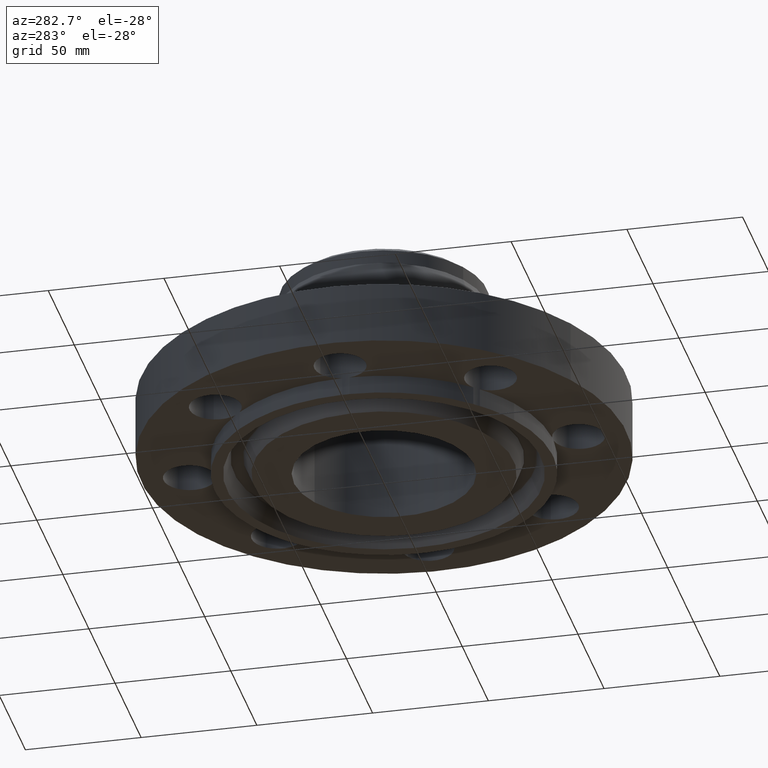
[diagram: clean part render]
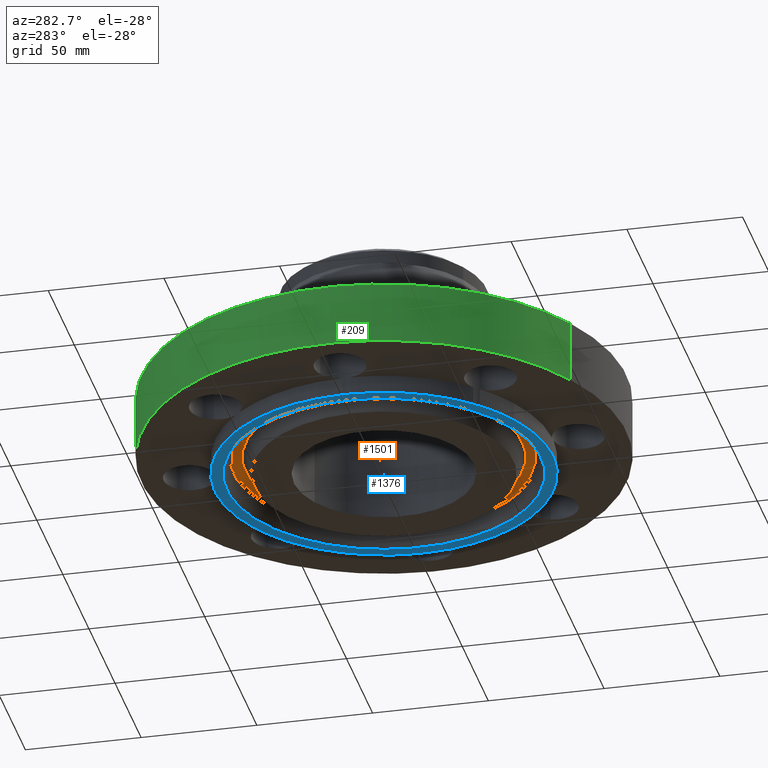
[diagram: same view with three faces highlighted in distinct colors, each labeled with its STEP entity id]
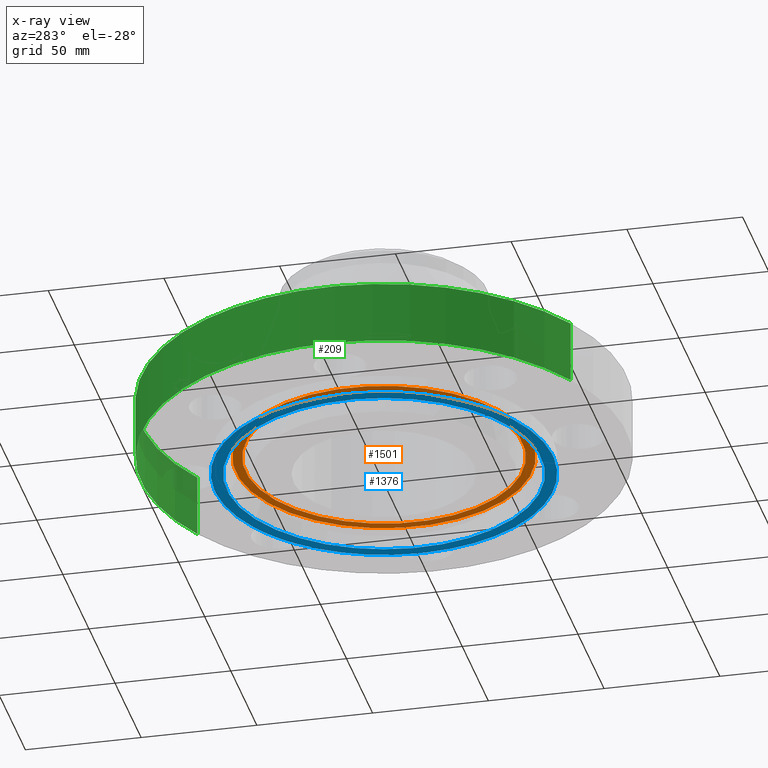
[diagram: x-ray of the same camera — body ghosted, the three highlighted faces saturated]
A machine part, auxiliary view with three faces highlighted in distinct colors.
The next image is the same camera in x-ray (body ghosted, the three faces saturated) — at least one of them is partly hidden behind the body in this view.
Their STEP definitions:

[orange] entity #1501 — the highlighted planar face has unit normal (0, 0, -1).
#793=AXIS2_PLACEMENT_3D('Plane Axis2P3D',#790,#791,#792) ;
#1423=AXIS2_PLACEMENT_3D('Circle Axis2P3D',#1421,#1422,$) ;
#1469=AXIS2_PLACEMENT_3D('Circle Axis2P3D',#1467,#1468,$) ;
#1485=AXIS2_PLACEMENT_3D('Circle Axis2P3D',#1483,#1484,$) ;
#1494=AXIS2_PLACEMENT_3D('Circle Axis2P3D',#1492,#1493,$) ;
#790=CARTESIAN_POINT('Axis2P3D Location',(0.,2.87500000001,0.)) ;
#1418=CARTESIAN_POINT('Vertex',(-1.20749119597,2.2102978083,-1.09273919747E-016)) ;
#1421=CARTESIAN_POINT('Axis2P3D Location',(0.,0.,-1.09273919747E-016)) ;
#1425=CARTESIAN_POINT('Vertex',(1.20749119597,-2.2102978083,-1.09273919747E-016)) ;
#1467=CARTESIAN_POINT('Axis2P3D Location',(0.,0.,-1.09273919747E-016)) ;
#1483=CARTESIAN_POINT('Axis2P3D Location',(0.,0.,0.)) ;
#1487=CARTESIAN_POINT('Vertex',(1.12970830473,-2.06791718093,1.04902962957E-016)) ;
#1489=CARTESIAN_POINT('Vertex',(-1.12970830473,2.06791718093,1.04902962957E-016)) ;
#1492=CARTESIAN_POINT('Axis2P3D Location',(0.,0.,0.)) ;
#791=DIRECTION('Axis2P3D Direction',(0.,0.,-0.0393700787402)) ;
#792=DIRECTION('Axis2P3D XDirection',(0.0393700787402,0.,0.)) ;
#1422=DIRECTION('Axis2P3D Direction',(0.,0.,0.0393700787402)) ;
#1468=DIRECTION('Axis2P3D Direction',(0.,0.,0.0393700787402)) ;
#1484=DIRECTION('Axis2P3D Direction',(0.,0.,-0.0393700787402)) ;
#1493=DIRECTION('Axis2P3D Direction',(0.,0.,-0.0393700787402)) ;
#1480=ORIENTED_EDGE('',*,*,#1427,.F.) ;
#1481=ORIENTED_EDGE('',*,*,#1471,.F.) ;
#1498=ORIENTED_EDGE('',*,*,#1491,.T.) ;
#1499=ORIENTED_EDGE('',*,*,#1496,.T.) ;
#1500=FACE_BOUND('',#1497,.T.) ;
#1501=ADVANCED_FACE('PartBody',(#1482,#1500),#794,.T.) ;
#1424=CIRCLE('generated circle',#1423,2.51862093014) ;
#1470=CIRCLE('generated circle',#1469,2.51862093014) ;
#1486=CIRCLE('generated circle',#1485,2.35637906988) ;
#1495=CIRCLE('generated circle',#1494,2.35637906988) ;
#1427=EDGE_CURVE('',#1419,#1426,#1424,.T.) ;
#1471=EDGE_CURVE('',#1426,#1419,#1470,.T.) ;
#1491=EDGE_CURVE('',#1488,#1490,#1486,.F.) ;
#1496=EDGE_CURVE('',#1490,#1488,#1495,.F.) ;
#1479=EDGE_LOOP('',(#1480,#1481)) ;
#1497=EDGE_LOOP('',(#1498,#1499)) ;
#1482=FACE_OUTER_BOUND('',#1479,.T.) ;
#794=PLANE('',#793) ;
#1419=VERTEX_POINT('',#1418) ;
#1426=VERTEX_POINT('',#1425) ;
#1488=VERTEX_POINT('',#1487) ;
#1490=VERTEX_POINT('',#1489) ;

[blue] entity #1376 — the highlighted planar face has unit normal (0, 0, -1).
#99=AXIS2_PLACEMENT_3D('Circle Axis2P3D',#97,#98,$) ;
#160=AXIS2_PLACEMENT_3D('Circle Axis2P3D',#158,#159,$) ;
#504=AXIS2_PLACEMENT_3D('Circle Axis2P3D',#502,#503,$) ;
#546=AXIS2_PLACEMENT_3D('Circle Axis2P3D',#544,#545,$) ;
#574=AXIS2_PLACEMENT_3D('Circle Axis2P3D',#572,#573,$) ;
#600=AXIS2_PLACEMENT_3D('Circle Axis2P3D',#598,#599,$) ;
#635=AXIS2_PLACEMENT_3D('Circle Axis2P3D',#633,#634,$) ;
#677=AXIS2_PLACEMENT_3D('Circle Axis2P3D',#675,#676,$) ;
#705=AXIS2_PLACEMENT_3D('Circle Axis2P3D',#703,#704,$) ;
#747=AXIS2_PLACEMENT_3D('Circle Axis2P3D',#745,#746,$) ;
#766=AXIS2_PLACEMENT_3D('Circle Axis2P3D',#764,#765,$) ;
#1002=AXIS2_PLACEMENT_3D('Circle Axis2P3D',#1000,#1001,$) ;
#1054=AXIS2_PLACEMENT_3D('Circle Axis2P3D',#1052,#1053,$) ;
#1106=AXIS2_PLACEMENT_3D('Circle Axis2P3D',#1104,#1105,$) ;
#1158=AXIS2_PLACEMENT_3D('Circle Axis2P3D',#1156,#1157,$) ;
#1210=AXIS2_PLACEMENT_3D('Circle Axis2P3D',#1208,#1209,$) ;
#1262=AXIS2_PLACEMENT_3D('Circle Axis2P3D',#1260,#1261,$) ;
#1314=AXIS2_PLACEMENT_3D('Circle Axis2P3D',#1312,#1313,$) ;
#1336=AXIS2_PLACEMENT_3D('Plane Axis2P3D',#1333,#1334,#1335) ;
#1360=AXIS2_PLACEMENT_3D('Circle Axis2P3D',#1358,#1359,$) ;
#1369=AXIS2_PLACEMENT_3D('Circle Axis2P3D',#1367,#1368,$) ;
#94=CARTESIAN_POINT('Vertex',(0.0616409036851,2.87433912388,-0.313000000001)) ;
#97=CARTESIAN_POINT('Axis2P3D Location',(0.,3.31000000001,-0.313000000001)) ;
#101=CARTESIAN_POINT('Vertex',(-0.0616409036851,2.87433912388,-0.313000000001)) ;
#155=CARTESIAN_POINT('Vertex',(1.37834842349,2.52304986544,-0.313000000001)) ;
#158=CARTESIAN_POINT('Axis2P3D Location',(0.,0.,-0.313000000001)) ;
#502=CARTESIAN_POINT('Axis2P3D Location',(0.,0.,-0.313000000001)) ;
#506=CARTESIAN_POINT('Vertex',(-2.87433912388,0.0616409036851,-0.313000000001)) ;
#508=CARTESIAN_POINT('Vertex',(-2.07605138692,1.98887798493,-0.313000000001)) ;
#544=CARTESIAN_POINT('Axis2P3D Location',(0.,0.,-0.313000000001)) ;
#548=CARTESIAN_POINT('Vertex',(-1.98887798493,2.07605138692,-0.313000000001)) ;
#569=CARTESIAN_POINT('Vertex',(-2.87433912388,-0.0616409036851,-0.313000000001)) ;
#572=CARTESIAN_POINT('Axis2P3D Location',(0.,0.,-0.313000000001)) ;
#576=CARTESIAN_POINT('Vertex',(-2.07605138692,-1.98887798493,-0.313000000001)) ;
#598=CARTESIAN_POINT('Axis2P3D Location',(0.,0.,-0.313000000001)) ;
#602=CARTESIAN_POINT('Vertex',(-1.37834842349,-2.52304986544,-0.313000000001)) ;
#604=CARTESIAN_POINT('Vertex',(-1.98887798493,-2.07605138692,-0.313000000001)) ;
#633=CARTESIAN_POINT('Axis2P3D Location',(0.,0.,-0.313000000001)) ;
#637=CARTESIAN_POINT('Vertex',(1.98887798493,-2.07605138692,-0.313000000001)) ;
#639=CARTESIAN_POINT('Vertex',(0.0616409036851,-2.87433912388,-0.313000000001)) ;
#675=CARTESIAN_POINT('Axis2P3D Location',(0.,0.,-0.313000000001)) ;
#679=CARTESIAN_POINT('Vertex',(-0.0616409036851,-2.87433912388,-0.313000000001)) ;
#700=CARTESIAN_POINT('Vertex',(2.07605138692,-1.98887798493,-0.313000000001)) ;
#703=CARTESIAN_POINT('Axis2P3D Location',(0.,0.,-0.313000000001)) ;
#707=CARTESIAN_POINT('Vertex',(2.87433912388,-0.0616409036851,-0.313000000001)) ;
#742=CARTESIAN_POINT('Vertex',(2.87433912388,0.0616409036851,-0.313000000001)) ;
#745=CARTESIAN_POINT('Axis2P3D Location',(0.,0.,-0.313000000001)) ;
#749=CARTESIAN_POINT('Vertex',(2.07605138692,1.98887798493,-0.313000000001)) ;
#764=CARTESIAN_POINT('Axis2P3D Location',(0.,0.,-0.313000000001)) ;
#768=CARTESIAN_POINT('Vertex',(1.98887798493,2.07605138692,-0.313000000001)) ;
#1000=CARTESIAN_POINT('Axis2P3D Location',(-2.34052344574,-2.34052344574,-0.313000000001)) ;
#1052=CARTESIAN_POINT('Axis2P3D Location',(4.05358090519E-016,-3.31000000001,-0.313000000001)) ;
#1104=CARTESIAN_POINT('Axis2P3D Location',(-3.31000000001,-6.08037135779E-016,-0.313000000001)) ;
#1156=CARTESIAN_POINT('Axis2P3D Location',(2.34052344574,2.34052344574,-0.313000000001)) ;
#1208=CARTESIAN_POINT('Axis2P3D Location',(2.34052344574,-2.34052344574,-0.313000000001)) ;
#1260=CARTESIAN_POINT('Axis2P3D Location',(3.31000000001,2.0267904526E-016,-0.313000000001)) ;
#1312=CARTESIAN_POINT('Axis2P3D Location',(-2.34052344574,2.34052344574,-0.313000000001)) ;
#1333=CARTESIAN_POINT('Axis2P3D Location',(0.,1.53400000001,-0.313000000001)) ;
#1358=CARTESIAN_POINT('Axis2P3D Location',(-2.79741234551E-016,2.79741234551E-016,-0.313000000001)) ;
#1362=CARTESIAN_POINT('Vertex',(1.28102503916,-2.34490060538,-0.313000000001)) ;
#1364=CARTESIAN_POINT('Vertex',(-1.28102503916,2.34490060538,-0.313000000001)) ;
#1367=CARTESIAN_POINT('Axis2P3D Location',(0.,5.59482469102E-016,-0.313000000001)) ;
#98=DIRECTION('Axis2P3D Direction',(0.,-0.,-0.0393700787402)) ;
#159=DIRECTION('Axis2P3D Direction',(0.,0.,-0.0393700787402)) ;
#503=DIRECTION('Axis2P3D Direction',(0.,0.,-0.0393700787402)) ;
#545=DIRECTION('Axis2P3D Direction',(0.,0.,-0.0393700787402)) ;
#573=DIRECTION('Axis2P3D Direction',(0.,0.,-0.0393700787402)) ;
#599=DIRECTION('Axis2P3D Direction',(0.,0.,-0.0393700787402)) ;
#634=DIRECTION('Axis2P3D Direction',(0.,0.,-0.0393700787402)) ;
#676=DIRECTION('Axis2P3D Direction',(0.,0.,-0.0393700787402)) ;
#704=DIRECTION('Axis2P3D Direction',(0.,0.,-0.0393700787402)) ;
#746=DIRECTION('Axis2P3D Direction',(0.,0.,-0.0393700787402)) ;
#765=DIRECTION('Axis2P3D Direction',(0.,0.,-0.0393700787402)) ;
#1001=DIRECTION('Axis2P3D Direction',(0.,0.,-0.0393700787402)) ;
#1053=DIRECTION('Axis2P3D Direction',(-0.,0.,-0.0393700787402)) ;
#1105=DIRECTION('Axis2P3D Direction',(0.,0.,-0.0393700787402)) ;
#1157=DIRECTION('Axis2P3D Direction',(0.,-0.,-0.0393700787402)) ;
#1209=DIRECTION('Axis2P3D Direction',(-0.,0.,-0.0393700787402)) ;
#1261=DIRECTION('Axis2P3D Direction',(0.,-0.,-0.0393700787402)) ;
#1313=DIRECTION('Axis2P3D Direction',(0.,0.,-0.0393700787402)) ;
#1334=DIRECTION('Axis2P3D Direction',(0.,0.,-0.0393700787402)) ;
#1335=DIRECTION('Axis2P3D XDirection',(0.0393700787402,0.,0.)) ;
#1359=DIRECTION('Axis2P3D Direction',(0.,0.,-0.0393700787402)) ;
#1368=DIRECTION('Axis2P3D Direction',(0.,0.,-0.0393700787402)) ;
#1339=ORIENTED_EDGE('',*,*,#751,.T.) ;
#1340=ORIENTED_EDGE('',*,*,#1264,.F.) ;
#1341=ORIENTED_EDGE('',*,*,#709,.T.) ;
#1342=ORIENTED_EDGE('',*,*,#1212,.F.) ;
#1343=ORIENTED_EDGE('',*,*,#641,.T.) ;
#1344=ORIENTED_EDGE('',*,*,#1056,.F.) ;
#1345=ORIENTED_EDGE('',*,*,#681,.T.) ;
#1346=ORIENTED_EDGE('',*,*,#606,.T.) ;
#1347=ORIENTED_EDGE('',*,*,#1004,.F.) ;
#1348=ORIENTED_EDGE('',*,*,#578,.T.) ;
#1349=ORIENTED_EDGE('',*,*,#1108,.F.) ;
#1350=ORIENTED_EDGE('',*,*,#510,.T.) ;
#1351=ORIENTED_EDGE('',*,*,#1316,.F.) ;
#1352=ORIENTED_EDGE('',*,*,#550,.T.) ;
#1353=ORIENTED_EDGE('',*,*,#103,.F.) ;
#1354=ORIENTED_EDGE('',*,*,#162,.T.) ;
#1355=ORIENTED_EDGE('',*,*,#770,.T.) ;
#1356=ORIENTED_EDGE('',*,*,#1160,.F.) ;
#1373=ORIENTED_EDGE('',*,*,#1366,.F.) ;
#1374=ORIENTED_EDGE('',*,*,#1371,.F.) ;
#1375=FACE_BOUND('',#1372,.T.) ;
#1376=ADVANCED_FACE('PartBody',(#1357,#1375),#1337,.T.) ;
#100=CIRCLE('generated circle',#99,0.440000000002) ;
#161=CIRCLE('generated circle',#160,2.87500000001) ;
#505=CIRCLE('generated circle',#504,2.87500000001) ;
#547=CIRCLE('generated circle',#546,2.87500000001) ;
#575=CIRCLE('generated circle',#574,2.87500000001) ;
#601=CIRCLE('generated circle',#600,2.87500000001) ;
#636=CIRCLE('generated circle',#635,2.87500000001) ;
#678=CIRCLE('generated circle',#677,2.87500000001) ;
#706=CIRCLE('generated circle',#705,2.87500000001) ;
#748=CIRCLE('generated circle',#747,2.87500000001) ;
#767=CIRCLE('generated circle',#766,2.87500000001) ;
#1003=CIRCLE('generated circle',#1002,0.440000000002) ;
#1055=CIRCLE('generated circle',#1054,0.440000000002) ;
#1107=CIRCLE('generated circle',#1106,0.440000000002) ;
#1159=CIRCLE('generated circle',#1158,0.440000000002) ;
#1211=CIRCLE('generated circle',#1210,0.440000000002) ;
#1263=CIRCLE('generated circle',#1262,0.440000000002) ;
#1315=CIRCLE('generated circle',#1314,0.440000000002) ;
#1361=CIRCLE('generated circle',#1360,2.67200000001) ;
#1370=CIRCLE('generated circle',#1369,2.67200000001) ;
#103=EDGE_CURVE('',#95,#102,#100,.T.) ;
#162=EDGE_CURVE('',#95,#156,#161,.T.) ;
#510=EDGE_CURVE('',#507,#509,#505,.T.) ;
#550=EDGE_CURVE('',#549,#102,#547,.T.) ;
#578=EDGE_CURVE('',#577,#570,#575,.T.) ;
#606=EDGE_CURVE('',#603,#605,#601,.T.) ;
#641=EDGE_CURVE('',#638,#640,#636,.T.) ;
#681=EDGE_CURVE('',#680,#603,#678,.T.) ;
#709=EDGE_CURVE('',#708,#701,#706,.T.) ;
#751=EDGE_CURVE('',#750,#743,#748,.T.) ;
#770=EDGE_CURVE('',#156,#769,#767,.T.) ;
#1004=EDGE_CURVE('',#577,#605,#1003,.T.) ;
#1056=EDGE_CURVE('',#680,#640,#1055,.T.) ;
#1108=EDGE_CURVE('',#507,#570,#1107,.T.) ;
#1160=EDGE_CURVE('',#750,#769,#1159,.T.) ;
#1212=EDGE_CURVE('',#638,#701,#1211,.T.) ;
#1264=EDGE_CURVE('',#708,#743,#1263,.T.) ;
#1316=EDGE_CURVE('',#549,#509,#1315,.T.) ;
#1366=EDGE_CURVE('',#1363,#1365,#1361,.T.) ;
#1371=EDGE_CURVE('',#1365,#1363,#1370,.T.) ;
#1338=EDGE_LOOP('',(#1339,#1340,#1341,#1342,#1343,#1344,#1345,#1346,#1347,#1348,#1349,#1350,#1351,#1352,#1353,#1354,#1355,#1356)) ;
#1372=EDGE_LOOP('',(#1373,#1374)) ;
#1357=FACE_OUTER_BOUND('',#1338,.T.) ;
#1337=PLANE('',#1336) ;
#95=VERTEX_POINT('',#94) ;
#102=VERTEX_POINT('',#101) ;
#156=VERTEX_POINT('',#155) ;
#507=VERTEX_POINT('',#506) ;
#509=VERTEX_POINT('',#508) ;
#549=VERTEX_POINT('',#548) ;
#570=VERTEX_POINT('',#569) ;
#577=VERTEX_POINT('',#576) ;
#603=VERTEX_POINT('',#602) ;
#605=VERTEX_POINT('',#604) ;
#638=VERTEX_POINT('',#637) ;
#640=VERTEX_POINT('',#639) ;
#680=VERTEX_POINT('',#679) ;
#701=VERTEX_POINT('',#700) ;
#708=VERTEX_POINT('',#707) ;
#743=VERTEX_POINT('',#742) ;
#750=VERTEX_POINT('',#749) ;
#769=VERTEX_POINT('',#768) ;
#1363=VERTEX_POINT('',#1362) ;
#1365=VERTEX_POINT('',#1364) ;

[green] entity #209 — the highlighted cylindrical surface (partial cylindrical patch) has radius 104.775 mm, axis along (0, 0, -1).
#173=AXIS2_PLACEMENT_3D('Cylinder Axis2P3D',#170,#171,#172) ;
#177=AXIS2_PLACEMENT_3D('Circle Axis2P3D',#175,#176,$) ;
#193=AXIS2_PLACEMENT_3D('Circle Axis2P3D',#191,#192,$) ;
#170=CARTESIAN_POINT('Axis2P3D Location',(0.,0.,1.37350000001)) ;
#175=CARTESIAN_POINT('Axis2P3D Location',(0.,0.,0.)) ;
#179=CARTESIAN_POINT('Vertex',(-1.97763034675,-3.62002806781,2.79741234551E-016)) ;
#181=CARTESIAN_POINT('Vertex',(1.97763034675,3.62002806781,2.79741234551E-016)) ;
#184=CARTESIAN_POINT('Line Origine',(-1.97763034675,-3.62002806781,0.530000000002)) ;
#188=CARTESIAN_POINT('Vertex',(-1.97763034675,-3.62002806781,1.06)) ;
#191=CARTESIAN_POINT('Axis2P3D Location',(0.,0.,1.06)) ;
#195=CARTESIAN_POINT('Vertex',(1.97763034675,3.62002806781,1.06)) ;
#198=CARTESIAN_POINT('Line Origine',(1.97763034675,3.62002806781,0.530000000002)) ;
#171=DIRECTION('Axis2P3D Direction',(0.,0.,-0.0393700787402)) ;
#172=DIRECTION('Axis2P3D XDirection',(0.0188750212049,0.0345504945626,0.)) ;
#176=DIRECTION('Axis2P3D Direction',(0.,0.,-0.0393700787402)) ;
#185=DIRECTION('Vector Direction',(0.,0.,-0.0393700787402)) ;
#192=DIRECTION('Axis2P3D Direction',(0.,0.,-0.0393700787402)) ;
#199=DIRECTION('Vector Direction',(0.,0.,-0.0393700787402)) ;
#186=VECTOR('Line Direction',#185,0.0393700787402) ;
#200=VECTOR('Line Direction',#199,0.0393700787402) ;
#204=ORIENTED_EDGE('',*,*,#183,.F.) ;
#205=ORIENTED_EDGE('',*,*,#190,.T.) ;
#206=ORIENTED_EDGE('',*,*,#197,.T.) ;
#207=ORIENTED_EDGE('',*,*,#202,.F.) ;
#209=ADVANCED_FACE('PartBody',(#208),#174,.T.) ;
#178=CIRCLE('generated circle',#177,4.12500000002) ;
#194=CIRCLE('generated circle',#193,4.12500000002) ;
#174=CYLINDRICAL_SURFACE('generated cylinder',#173,4.12500000002) ;
#183=EDGE_CURVE('',#180,#182,#178,.T.) ;
#190=EDGE_CURVE('',#180,#189,#187,.F.) ;
#197=EDGE_CURVE('',#189,#196,#194,.T.) ;
#202=EDGE_CURVE('',#182,#196,#201,.F.) ;
#203=EDGE_LOOP('',(#204,#205,#206,#207)) ;
#208=FACE_OUTER_BOUND('',#203,.T.) ;
#187=LINE('Line',#184,#186) ;
#201=LINE('Line',#198,#200) ;
#180=VERTEX_POINT('',#179) ;
#182=VERTEX_POINT('',#181) ;
#189=VERTEX_POINT('',#188) ;
#196=VERTEX_POINT('',#195) ;